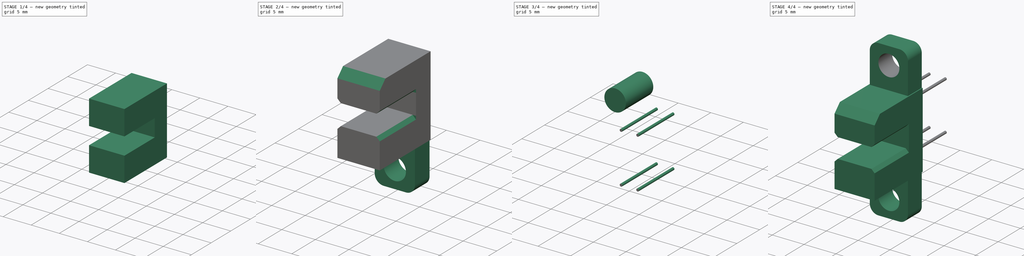
[diagram: build sequence overview — one tinted view per stage of 4, left to right]
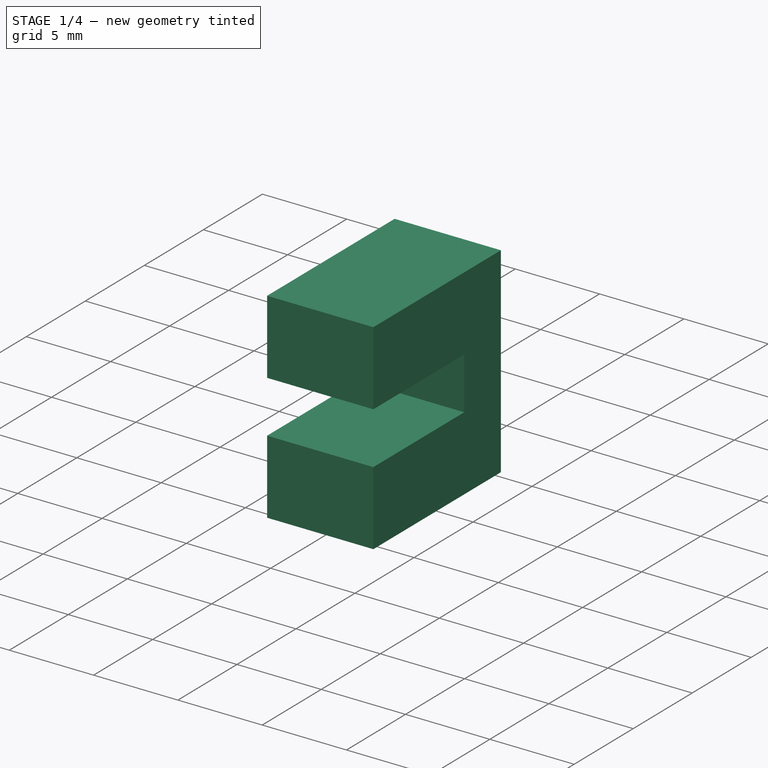
[diagram: stage 1 of 4 — iso view after this stage's code; geometry added in this stage tinted green]
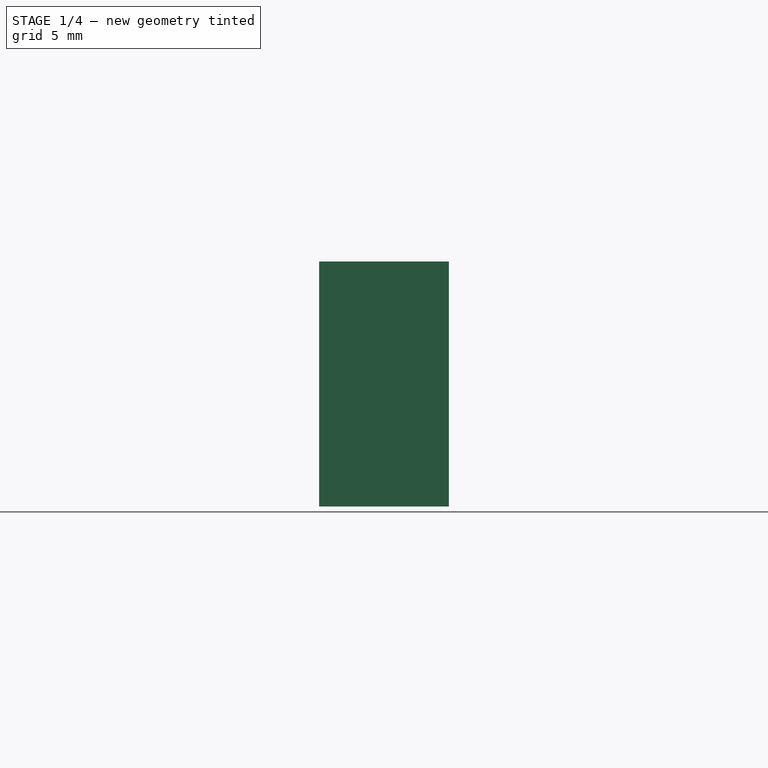
[diagram: stage 1 of 4 — front view after this stage's code; geometry added in this stage tinted green]
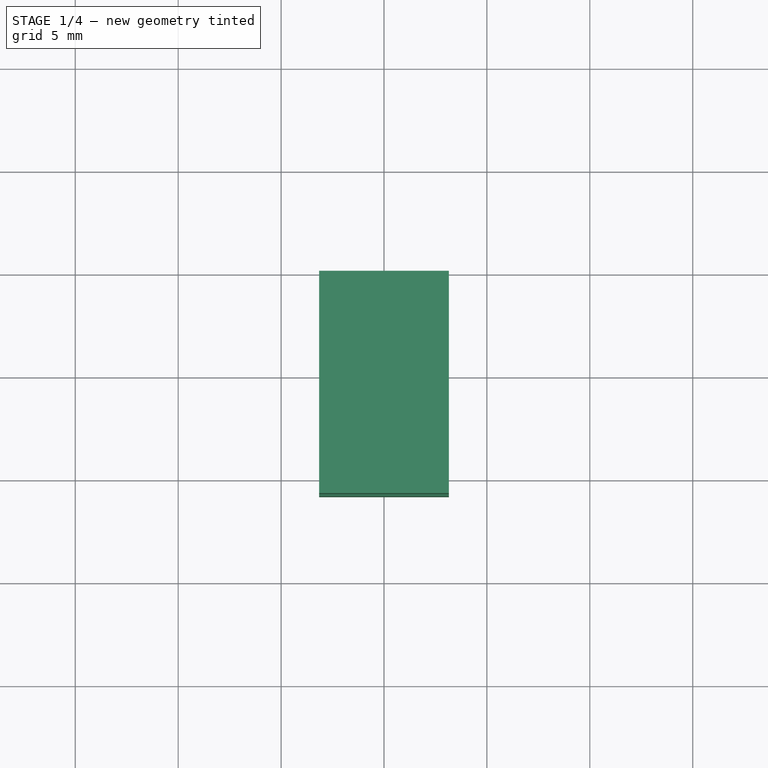
[diagram: stage 1 of 4 — top view after this stage's code; geometry added in this stage tinted green]
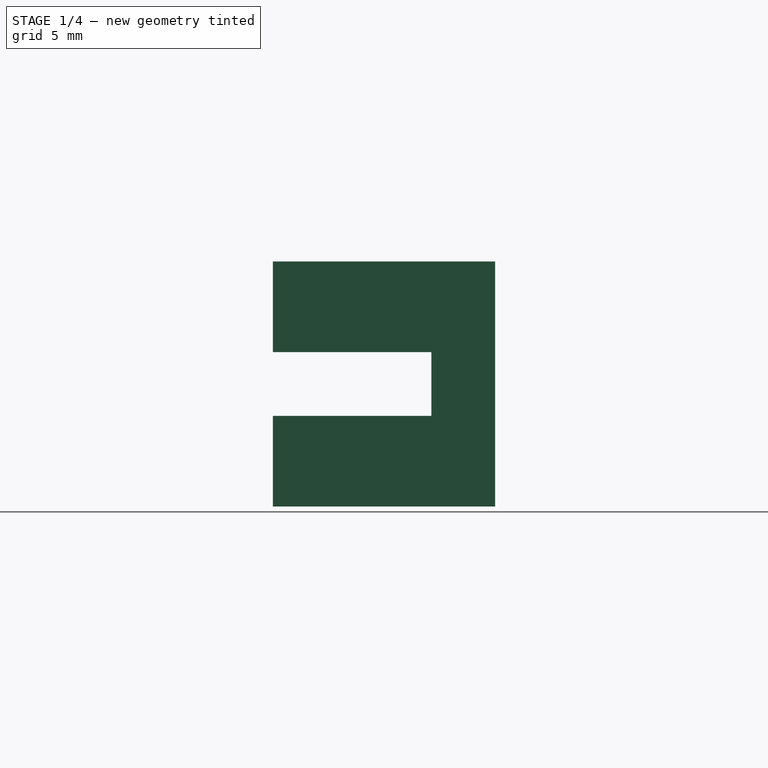
[diagram: stage 1 of 4 — right view after this stage's code; geometry added in this stage tinted green]
FCSTD DOCUMENT  (FreeCAD 0.15R4671 (Git))
Label: Capteur optique
License: All rights reserved
LicenseURL: http://en.wikipedia.org/wiki/All_rights_reserved
objects: Sketcher::SketchObject×5, Part::Extrusion×5, Part::Cut×2, Part::Chamfer×2, Part::MultiFuse×2, Part::Fillet×1
note: 17 computed .brp shape members not serialized (recipe doc carries the construction recipe); baked Part::Feature solids carry a one-line shape summary decoded from their .brp

FEATURE [Sketcher::SketchObject] Sketch
  Placement = pos=(0,0,0) rot=(-1,0,0;4.71239rad)
  sketch-geometry (4):
    g0: LineSegment StartX=-3.15 StartY=5.95 StartZ=0 EndX=3.15 EndY=5.95 EndZ=0
    g1: LineSegment StartX=3.15 StartY=5.95 StartZ=0 EndX=3.15 EndY=-5.95 EndZ=0
    g2: LineSegment StartX=3.15 StartY=-5.95 StartZ=0 EndX=-3.15 EndY=-5.95 EndZ=0
    g3: LineSegment StartX=-3.15 StartY=-5.95 StartZ=0 EndX=-3.15 EndY=5.95 EndZ=0
  constraints (12):
    c: Coincident(g0,g1)
    c: Coincident(g1,g2)
    c: Coincident(g2,g3)
    c: Coincident(g3,g0)
    c: Horizontal(g0)
    c: Horizontal(g2)
    c: Vertical(g1)
    c: Vertical(g3)
    c: DistanceX(g0,g0) = 6.3
    c: DistanceY(g0,g2) = -11.9
    c: Symmetric(g0,g0,g-2)
    c: Symmetric(g0,g1,g-1)
FEATURE [Part::Extrusion] Extrude002
  Base = -> Sketch
  Dir = (0,-10.8,0)
  Solid = true
FEATURE [Sketcher::SketchObject] Sketch001
  ExternalGeometry = -> [Extrude002]
  Placement = pos=(0,-10.8,0) rot=(1,0,0;1.5708rad)
  Support = -> Extrude002 [Face6]
  sketch-geometry (4):
    g0: LineSegment StartX=-3.15 StartY=1.55 StartZ=0 EndX=3.15 EndY=1.55 EndZ=0
    g1: LineSegment StartX=3.15 StartY=1.55 StartZ=0 EndX=3.15 EndY=-1.55 EndZ=0
    g2: LineSegment StartX=3.15 StartY=-1.55 StartZ=0 EndX=-3.15 EndY=-1.55 EndZ=0
    g3: LineSegment StartX=-3.15 StartY=-1.55 StartZ=0 EndX=-3.15 EndY=1.55 EndZ=0
  constraints (12):
    c: Coincident(g0,g1)
    c: Coincident(g1,g2)
    c: Coincident(g2,g3)
    c: Coincident(g3,g0)
    c: Horizontal(g0)
    c: Horizontal(g2)
    c: Vertical(g1)
    c: Vertical(g3)
    c: PointOnObject(g0,g-4)
    c: PointOnObject(g0,g-3)
    c: DistanceY(g0,g2) = -3.1
    c: Symmetric(g0,g1,g-1)
FEATURE [Part::Extrusion] Extrude
  Base = -> Sketch001
  Dir = (0,7.7,0)
  Solid = true
FEATURE [Part::Cut] Cut
  Base = -> Extrude002
  Tool = -> Extrude
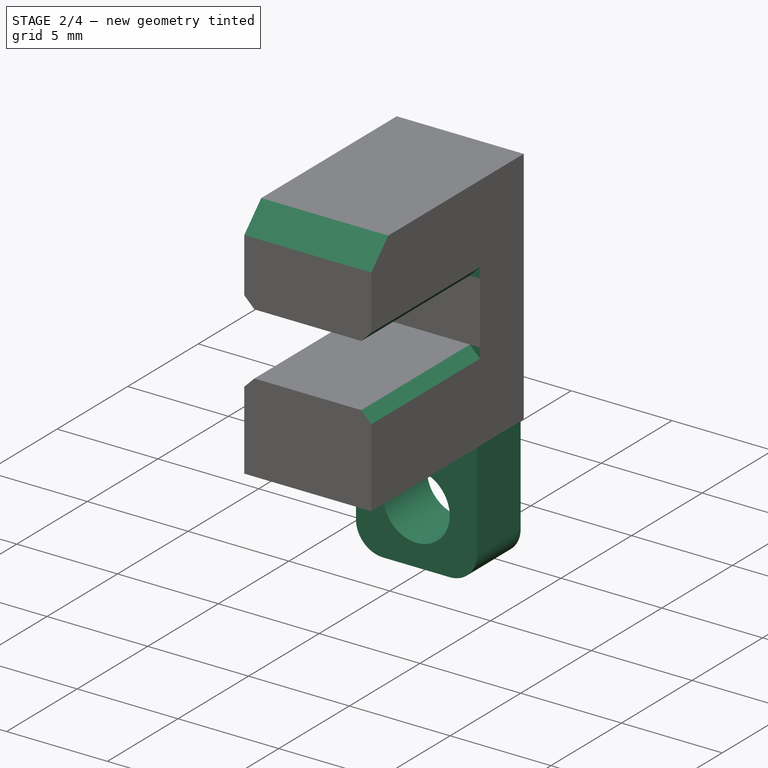
[diagram: stage 2 of 4 — iso view after this stage's code; geometry added in this stage tinted green]
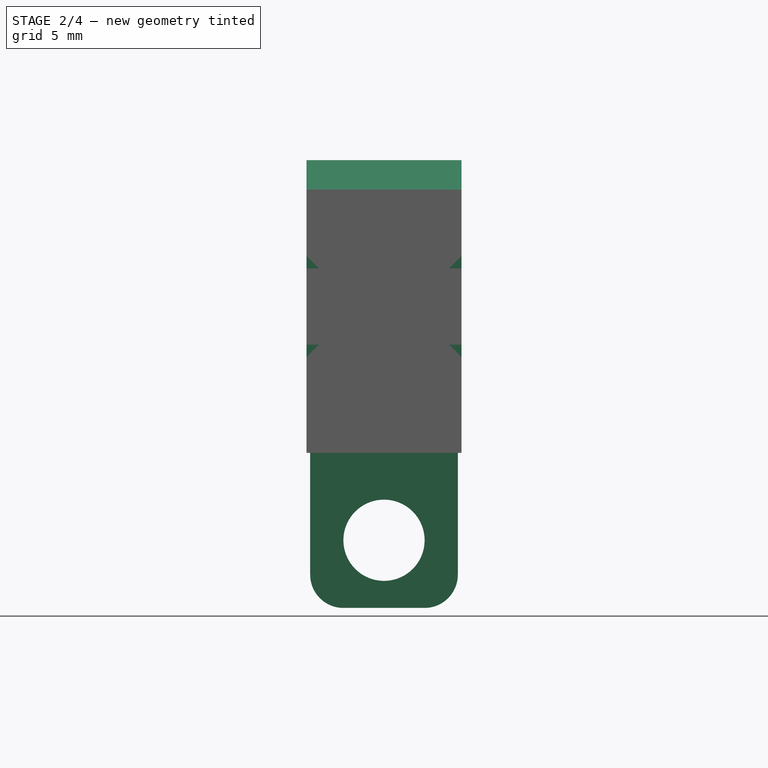
[diagram: stage 2 of 4 — front view after this stage's code; geometry added in this stage tinted green]
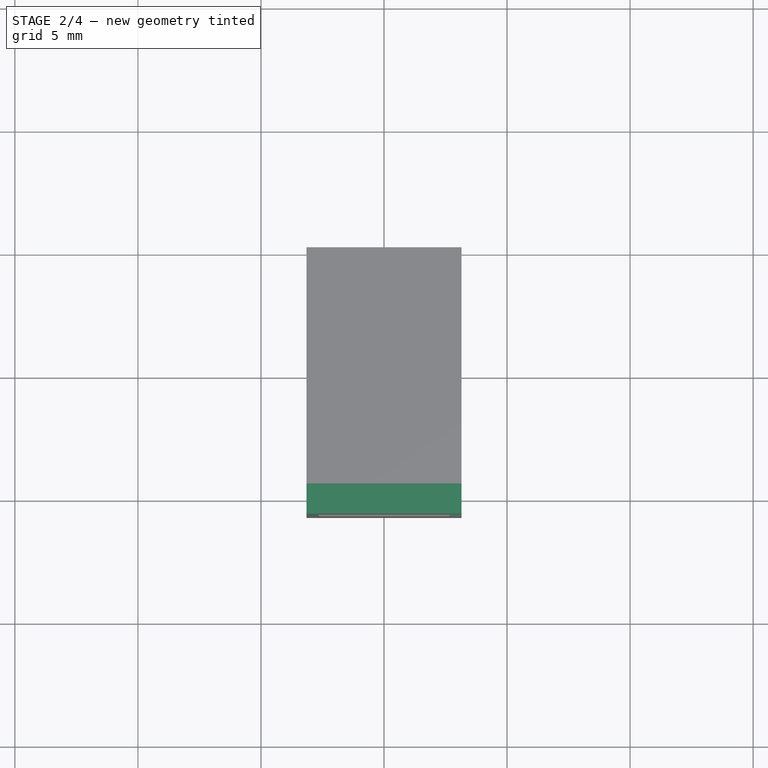
[diagram: stage 2 of 4 — top view after this stage's code; geometry added in this stage tinted green]
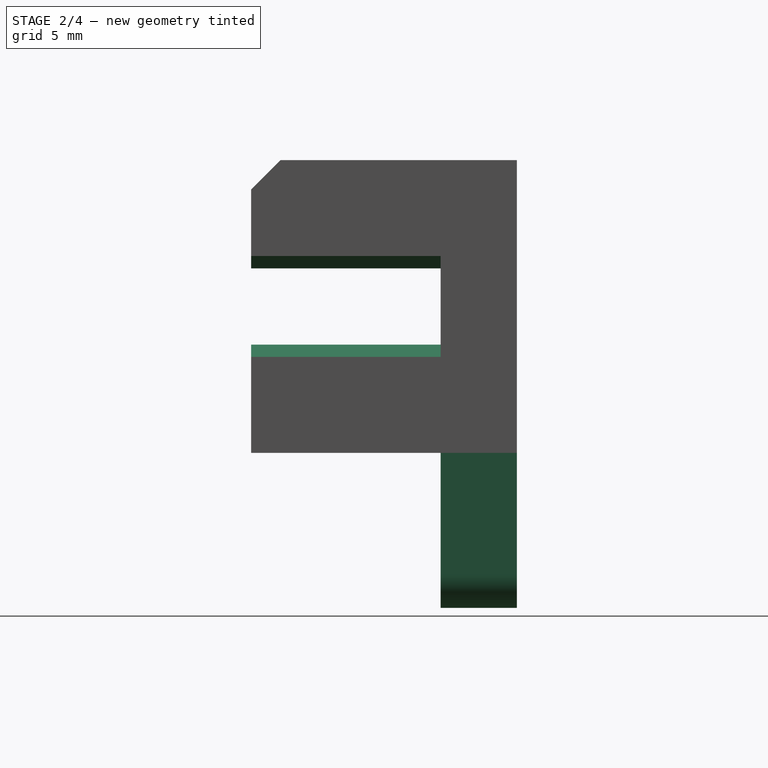
[diagram: stage 2 of 4 — right view after this stage's code; geometry added in this stage tinted green]
FEATURE [Part::Chamfer] Chamfer
  Base = -> Cut
  Edges = 4 edges r=0.5: [Edge7,Edge9,Edge15,Edge17]
FEATURE [Part::Chamfer] Chamfer001
  Base = -> Chamfer
  Edges = 1 edges r=1.2: [Edge13]
FEATURE [Part::MultiFuse] Fusion
  Shapes = -> [Chamfer001]
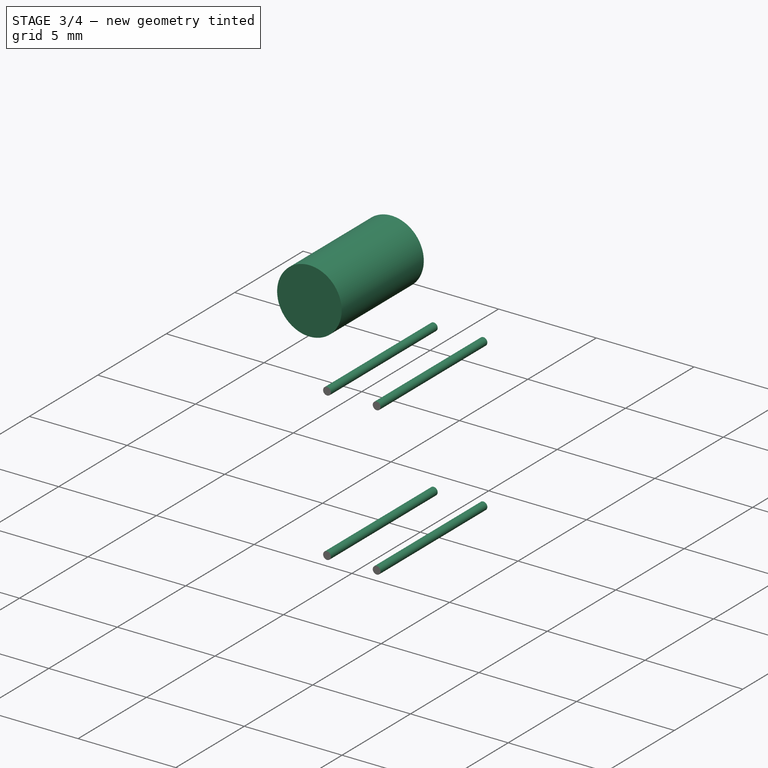
[diagram: stage 3 of 4 — iso view after this stage's code; geometry added in this stage tinted green]
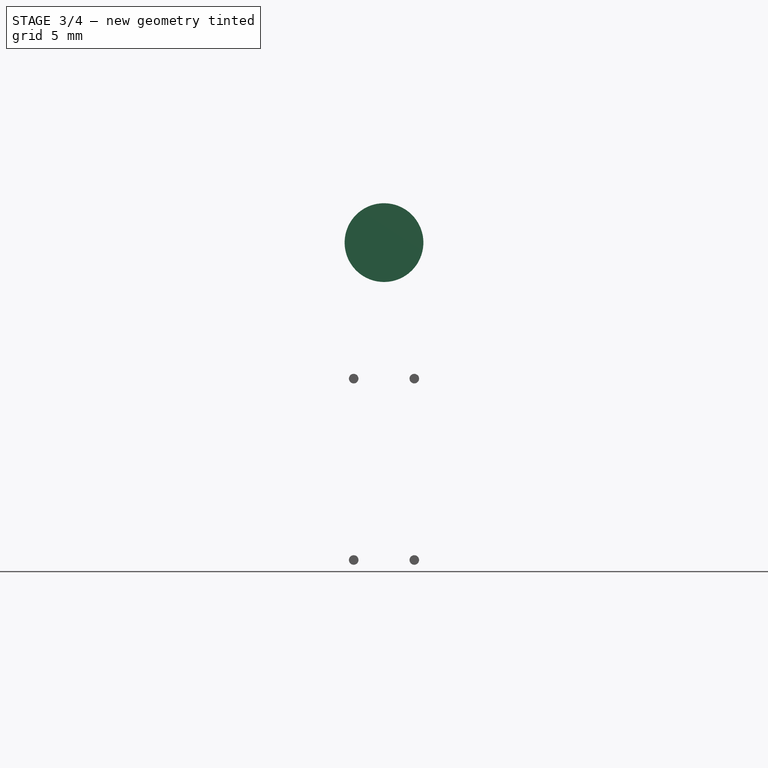
[diagram: stage 3 of 4 — front view after this stage's code; geometry added in this stage tinted green]
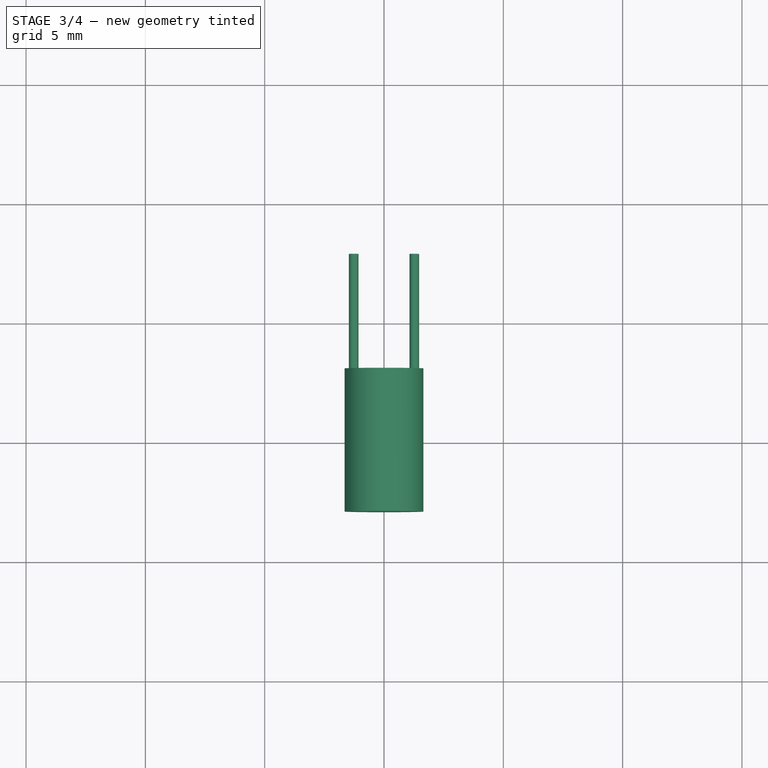
[diagram: stage 3 of 4 — top view after this stage's code; geometry added in this stage tinted green]
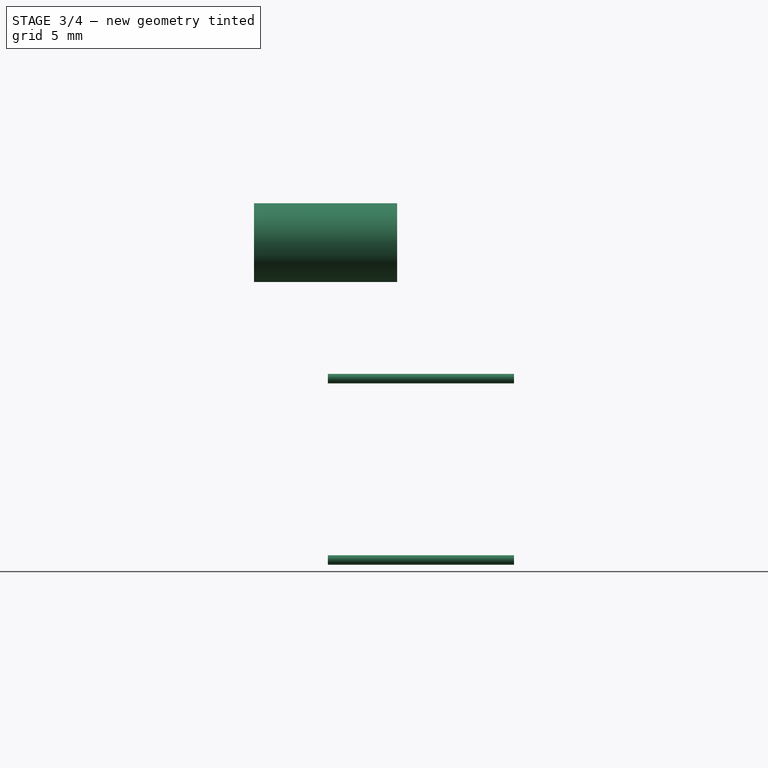
[diagram: stage 3 of 4 — right view after this stage's code; geometry added in this stage tinted green]
FEATURE [Sketcher::SketchObject] Sketch002
  ExternalGeometry = -> [Chamfer001]
  Placement = pos=(0,0,5.95) rot=(0,0,1;0rad)
  Support = -> Chamfer001 [Face5]
  sketch-geometry (4):
    g0: LineSegment StartX=-3 StartY=0 StartZ=0 EndX=3 EndY=0 EndZ=0
    g1: LineSegment StartX=3 StartY=0 StartZ=0 EndX=3 EndY=-3.1 EndZ=0
    g2: LineSegment StartX=3 StartY=-3.1 StartZ=0 EndX=-3 EndY=-3.1 EndZ=0
    g3: LineSegment StartX=-3 StartY=-3.1 StartZ=0 EndX=-3 EndY=0 EndZ=0
  constraints (12):
    c: Coincident(g0,g1)
    c: Coincident(g1,g2)
    c: Coincident(g2,g3)
    c: Coincident(g3,g0)
    c: Horizontal(g0)
    c: Horizontal(g2)
    c: Vertical(g1)
    c: Vertical(g3)
    c: PointOnObject(g0,g-1)
    c: DistanceX(g-3,g0) = 0.15
    c: Symmetric(g0,g0,g-2)
    c: DistanceY(g0,g1) = -3.1
FEATURE [Part::Extrusion] Extrude003
  Base = -> Sketch002
  Dir = (0,0,6.3)
  Solid = true
FEATURE [Sketcher::SketchObject] Sketch003
  ExternalGeometry = -> [Extrude003]
  Placement = pos=(0,-3.1,0) rot=(1,0,0;1.5708rad)
  Support = -> Extrude003 [Face3]
  sketch-geometry (1):
    g0: Circle CenterX=0 CenterY=9.5 CenterZ=0 NormalX=0 NormalY=0 NormalZ=1 Radius=1.65
  constraints (3):
    c: PointOnObject(g0,g-2)
    c: Radius(g0) = 1.65
    c: DistanceY(g0,g-3) = -3.55
FEATURE [Part::Extrusion] Extrude004
  Base = -> Sketch003
  Dir = (0,6,0)
  Solid = true
FEATURE [Sketcher::SketchObject] Sketch004
  Placement = pos=(0,0,0) rot=(0,0.707107,0.707107;3.14159rad)
  Support = -> Fusion [Face7]
  sketch-geometry (4):
    g0: Circle CenterX=-1.27 CenterY=3.8 CenterZ=0 NormalX=0 NormalY=0 NormalZ=1 Radius=0.2
    g1: Circle CenterX=1.27 CenterY=3.8 CenterZ=0 NormalX=0 NormalY=0 NormalZ=1 Radius=0.2
    g2: Circle CenterX=-1.27 CenterY=-3.8 CenterZ=0 NormalX=0 NormalY=0 NormalZ=1 Radius=0.2
    g3: Circle CenterX=1.27 CenterY=-3.8 CenterZ=0 NormalX=0 NormalY=0 NormalZ=1 Radius=0.2
  constraints (9):
    c: Radius(g0) = 0.2
    c: Equal(g0,g1)
    c: Equal(g0,g3)
    c: Equal(g0,g2)
    c: Symmetric(g0,g1,g-2)
    c: Symmetric(g2,g3,g-2)
    c: Symmetric(g0,g2,g-1)
    c: DistanceX(g0,g1) = 2.54
    c: DistanceY(g1,g3) = -7.6
FEATURE [Part::Extrusion] Extrude005
  Base = -> Sketch004
  Dir = (0,7.8,0)
  Solid = true
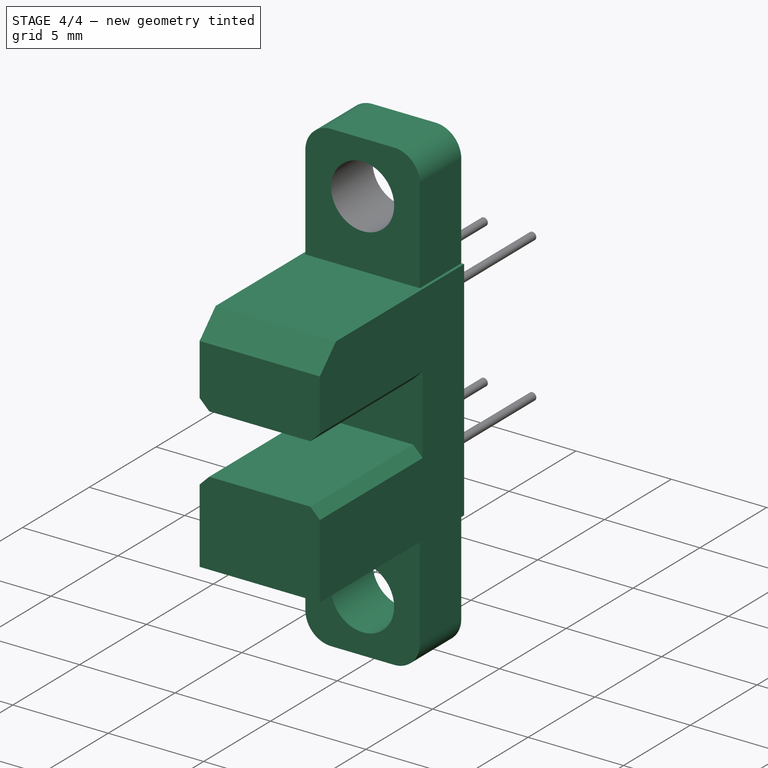
[diagram: stage 4 of 4 — iso view after this stage's code; geometry added in this stage tinted green]
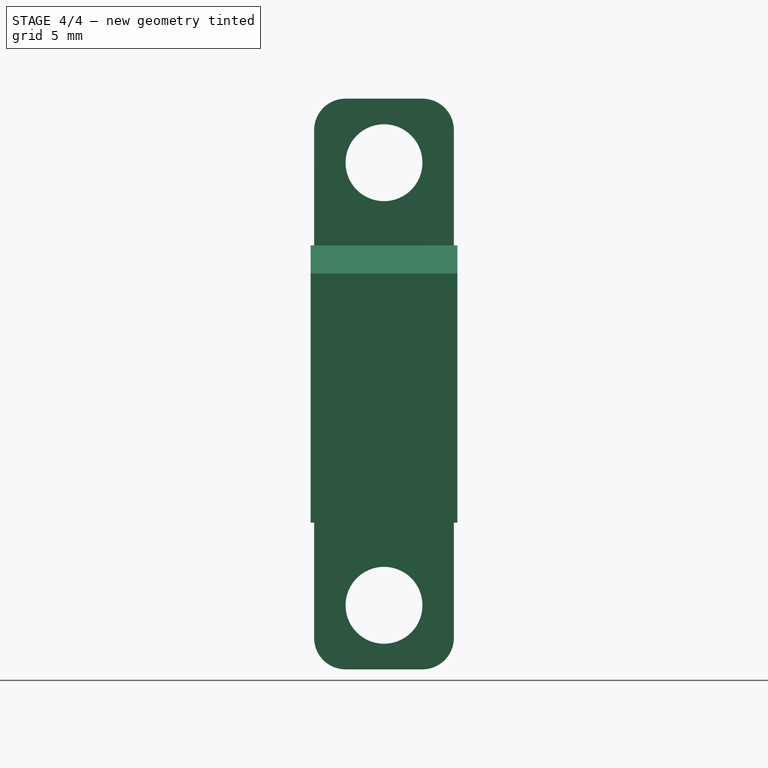
[diagram: stage 4 of 4 — front view after this stage's code; geometry added in this stage tinted green]
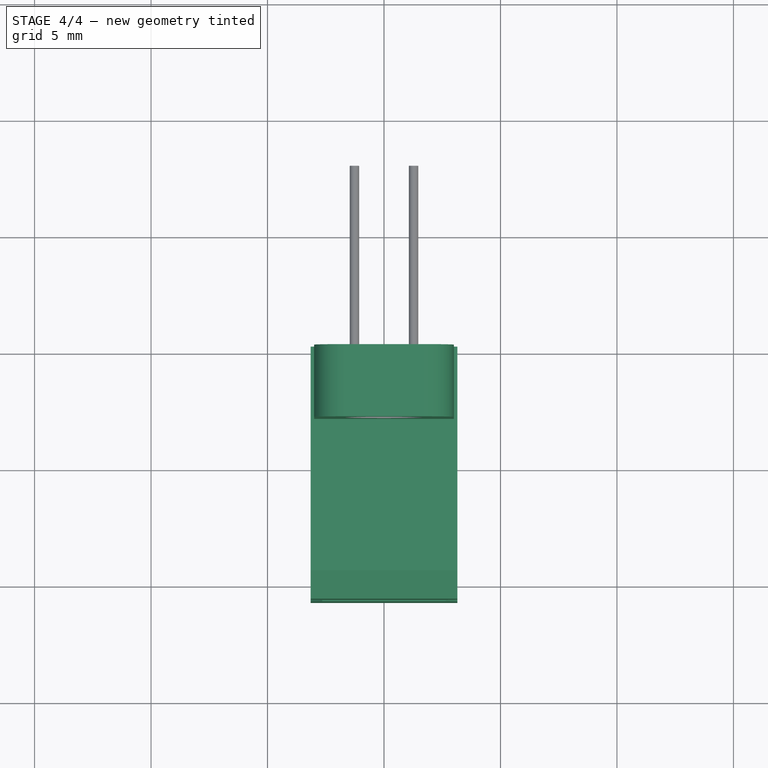
[diagram: stage 4 of 4 — top view after this stage's code; geometry added in this stage tinted green]
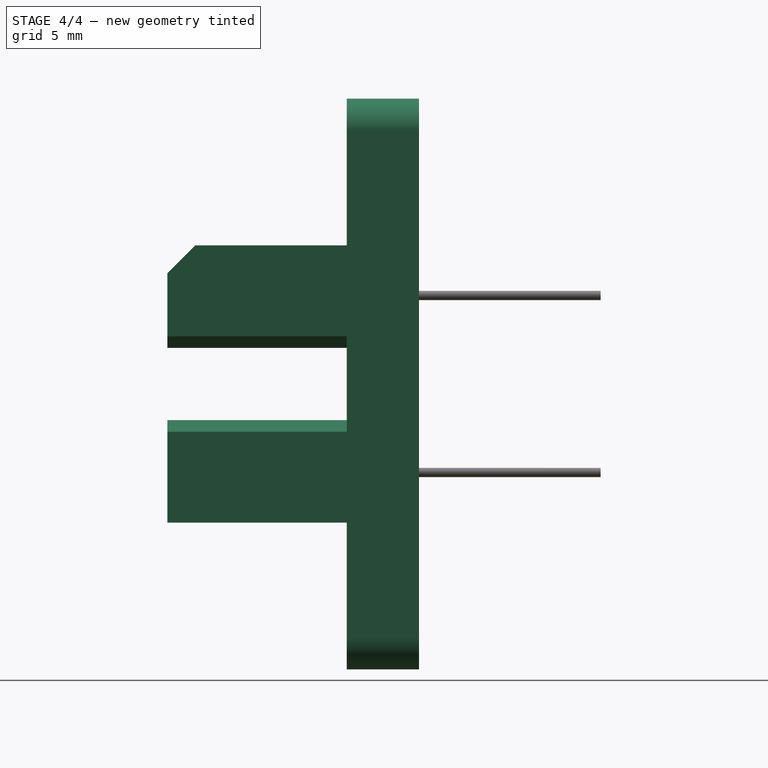
[diagram: stage 4 of 4 — right view after this stage's code; geometry added in this stage tinted green]
FEATURE [Part::Cut] Cut001
  Base = -> Extrude003
  Tool = -> Extrude004
FEATURE [Part::Fillet] Fillet
  Base = -> Cut001
  Edges = 2 edges r=1.35: [Edge8,Edge11]
FEATURE [Part::MultiFuse] Fusion001
  Shapes = -> [Fusion,Fillet,Extrude005]
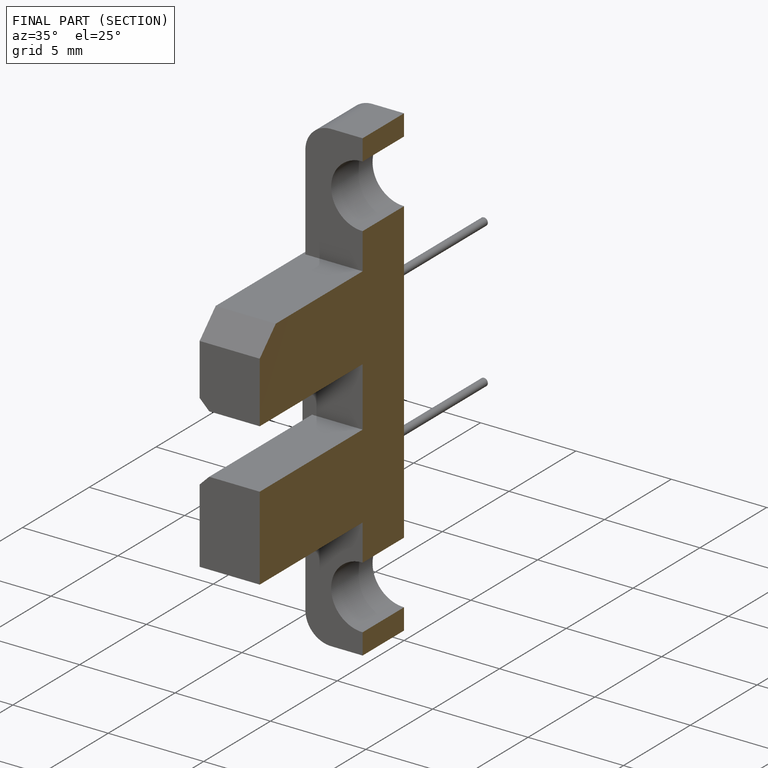
[diagram: finished part — half-section view (interior)]
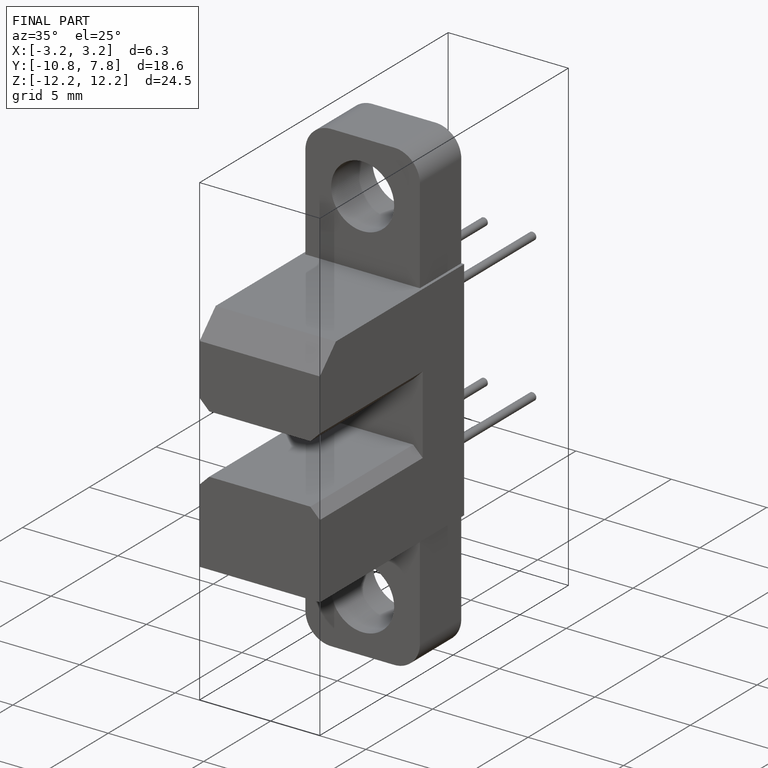
[diagram: finished part — iso view with bounding-box wireframe]
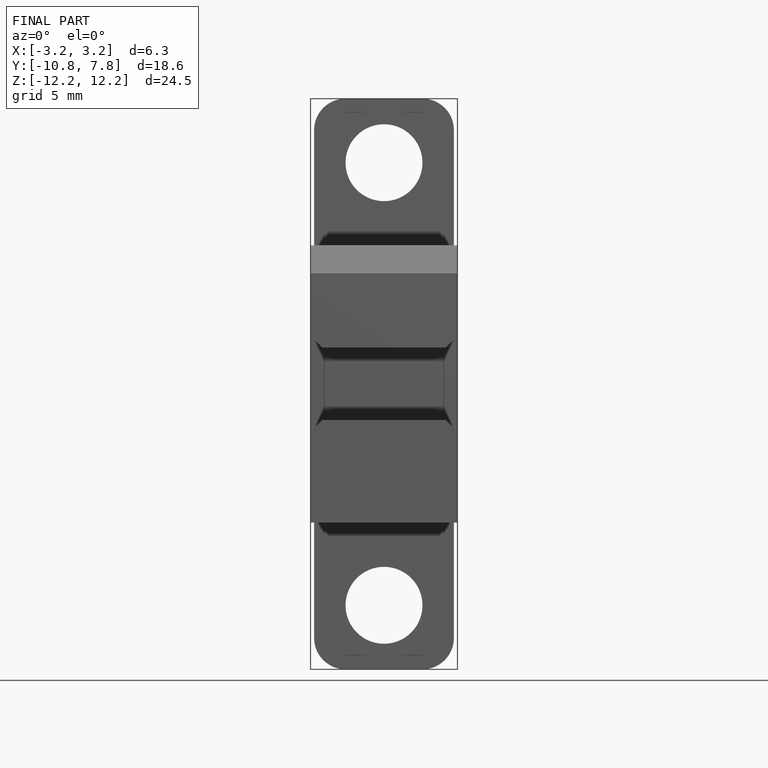
[diagram: finished part — front view with bounding-box wireframe]
